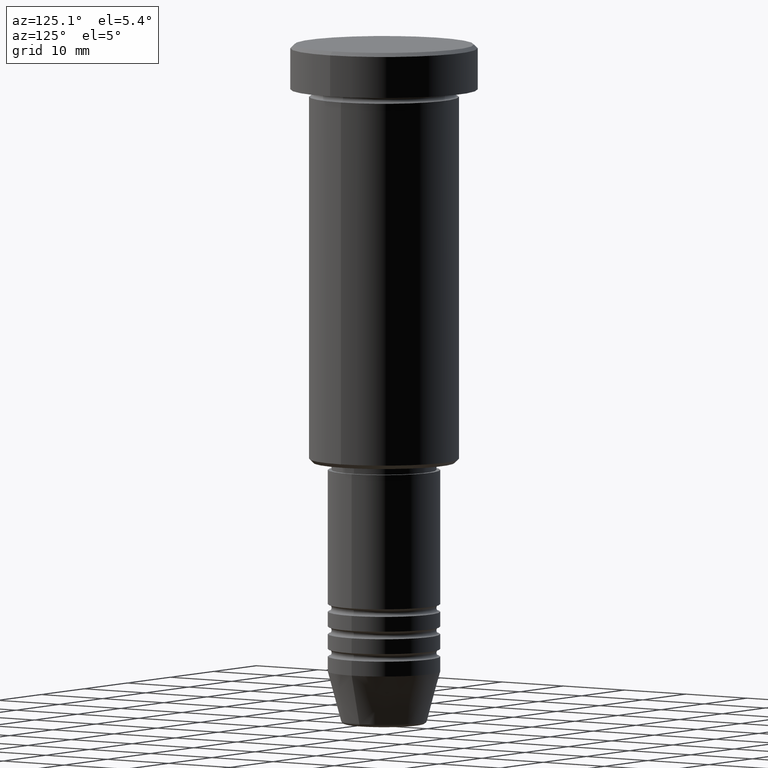
[diagram: clean part render]
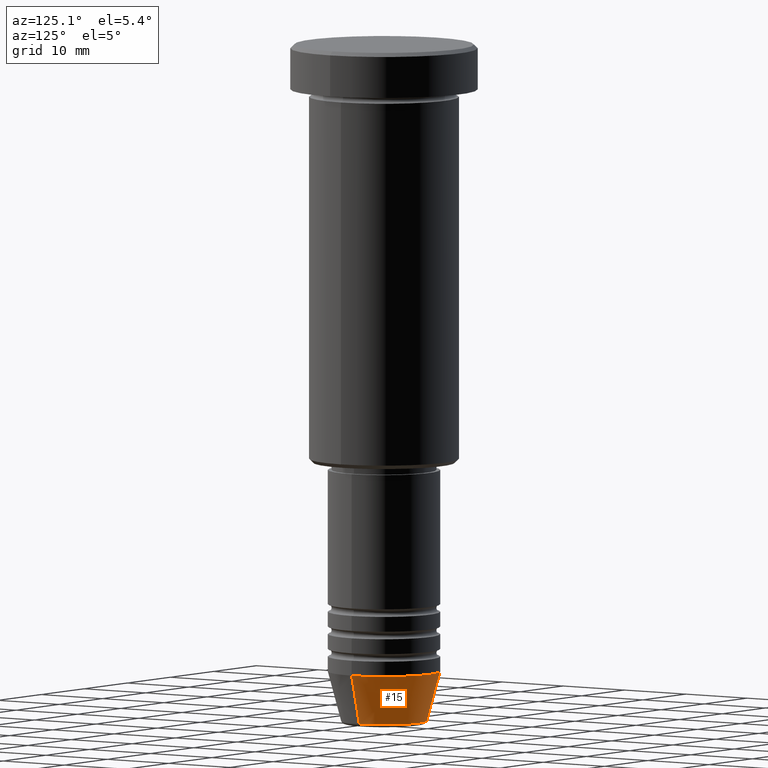
[diagram: same view with one face highlighted and labeled with its STEP entity id]
A machine part, auxiliary view. The second image highlights one B-rep face of the part: STEP entity #15.
In plain terms, the highlighted conical surface has half-angle 15 deg.
Its self-contained STEP definition (entity closure, byte-faithful):
#12 = VERTEX_POINT ( 'NONE', #239 ) ;
#15 = ADVANCED_FACE ( 'NONE', ( #618 ), #1145, .T. ) ;
#52 = VERTEX_POINT ( 'NONE', #593 ) ;
#95 = ORIENTED_EDGE ( 'NONE', *, *, #1003, .T. ) ;
#108 = DIRECTION ( 'NONE',  ( -0.000000000000000000, -0.000000000000000000, 1.000000000000000000 ) ) ;
#130 = EDGE_CURVE ( 'NONE', #280, #12, #553, .T. ) ;
#218 = ORIENTED_EDGE ( 'NONE', *, *, #130, .F. ) ;
#239 = CARTESIAN_POINT ( 'NONE',  ( -7.500000000000000000, 9.184850993605147944E-16, -84.00000000000000000 ) ) ;
#271 = LINE ( 'NONE', #452, #597 ) ;
#280 = VERTEX_POINT ( 'NONE', #528 ) ;
#310 = DIRECTION ( 'NONE',  ( -0.000000000000000000, -0.000000000000000000, 1.000000000000000000 ) ) ;
#320 = CARTESIAN_POINT ( 'NONE',  ( 0.000000000000000000, 0.000000000000000000, -84.00000000000000000 ) ) ;
#366 = EDGE_CURVE ( 'NONE', #52, #12, #271, .T. ) ;
#401 = AXIS2_PLACEMENT_3D ( 'NONE', #964, #108, #475 ) ;
#429 = CARTESIAN_POINT ( 'NONE',  ( 5.723655072137191269, 0.000000000000000000, -90.62940952255125637 ) ) ;
#452 = CARTESIAN_POINT ( 'NONE',  ( -7.500000000000000000, 9.184850993605147944E-16, -84.00000000000000000 ) ) ;
#475 = DIRECTION ( 'NONE',  ( 1.000000000000000000, 0.000000000000000000, 0.000000000000000000 ) ) ;
#508 = EDGE_CURVE ( 'NONE', #1079, #280, #813, .T. ) ;
#528 = CARTESIAN_POINT ( 'NONE',  ( 7.500000000000000000, 0.000000000000000000, -84.00000000000000000 ) ) ;
#537 = AXIS2_PLACEMENT_3D ( 'NONE', #320, #705, #989 ) ;
#540 = VECTOR ( 'NONE', #1076, 1000.000000000000000 ) ;
#553 = CIRCLE ( 'NONE', #401, 7.500000000000000000 ) ;
#583 = CARTESIAN_POINT ( 'NONE',  ( 0.000000000000000000, 0.000000000000000000, -90.62940952255125637 ) ) ;
#593 = CARTESIAN_POINT ( 'NONE',  ( -5.723655072137191269, 8.097153428560735915E-16, -90.62940952255125637 ) ) ;
#597 = VECTOR ( 'NONE', #1171, 1000.000000000000000 ) ;
#618 = FACE_OUTER_BOUND ( 'NONE', #1096, .T. ) ;
#658 = ORIENTED_EDGE ( 'NONE', *, *, #508, .F. ) ;
#680 = DIRECTION ( 'NONE',  ( 1.000000000000000000, 0.000000000000000000, 0.000000000000000000 ) ) ;
#705 = DIRECTION ( 'NONE',  ( -0.000000000000000000, -0.000000000000000000, 1.000000000000000000 ) ) ;
#813 = LINE ( 'NONE', #1162, #540 ) ;
#925 = CIRCLE ( 'NONE', #1166, 5.723655072137191269 ) ;
#964 = CARTESIAN_POINT ( 'NONE',  ( 0.000000000000000000, 0.000000000000000000, -84.00000000000000000 ) ) ;
#989 = DIRECTION ( 'NONE',  ( 1.000000000000000000, 0.000000000000000000, 0.000000000000000000 ) ) ;
#1003 = EDGE_CURVE ( 'NONE', #1079, #52, #925, .T. ) ;
#1076 = DIRECTION ( 'NONE',  ( 0.2588190451025213501, 0.000000000000000000, 0.9659258262890680902 ) ) ;
#1079 = VERTEX_POINT ( 'NONE', #429 ) ;
#1096 = EDGE_LOOP ( 'NONE', ( #95, #1153, #218, #658 ) ) ;
#1145 = CONICAL_SURFACE ( 'NONE', #537, 7.500000000000000000, 0.2617993877991500740 ) ;
#1153 = ORIENTED_EDGE ( 'NONE', *, *, #366, .T. ) ;
#1162 = CARTESIAN_POINT ( 'NONE',  ( 7.500000000000000000, 0.000000000000000000, -84.00000000000000000 ) ) ;
#1166 = AXIS2_PLACEMENT_3D ( 'NONE', #583, #310, #680 ) ;
#1171 = DIRECTION ( 'NONE',  ( -0.2588190451025213501, 3.169619151431772337E-17, 0.9659258262890680902 ) ) ;